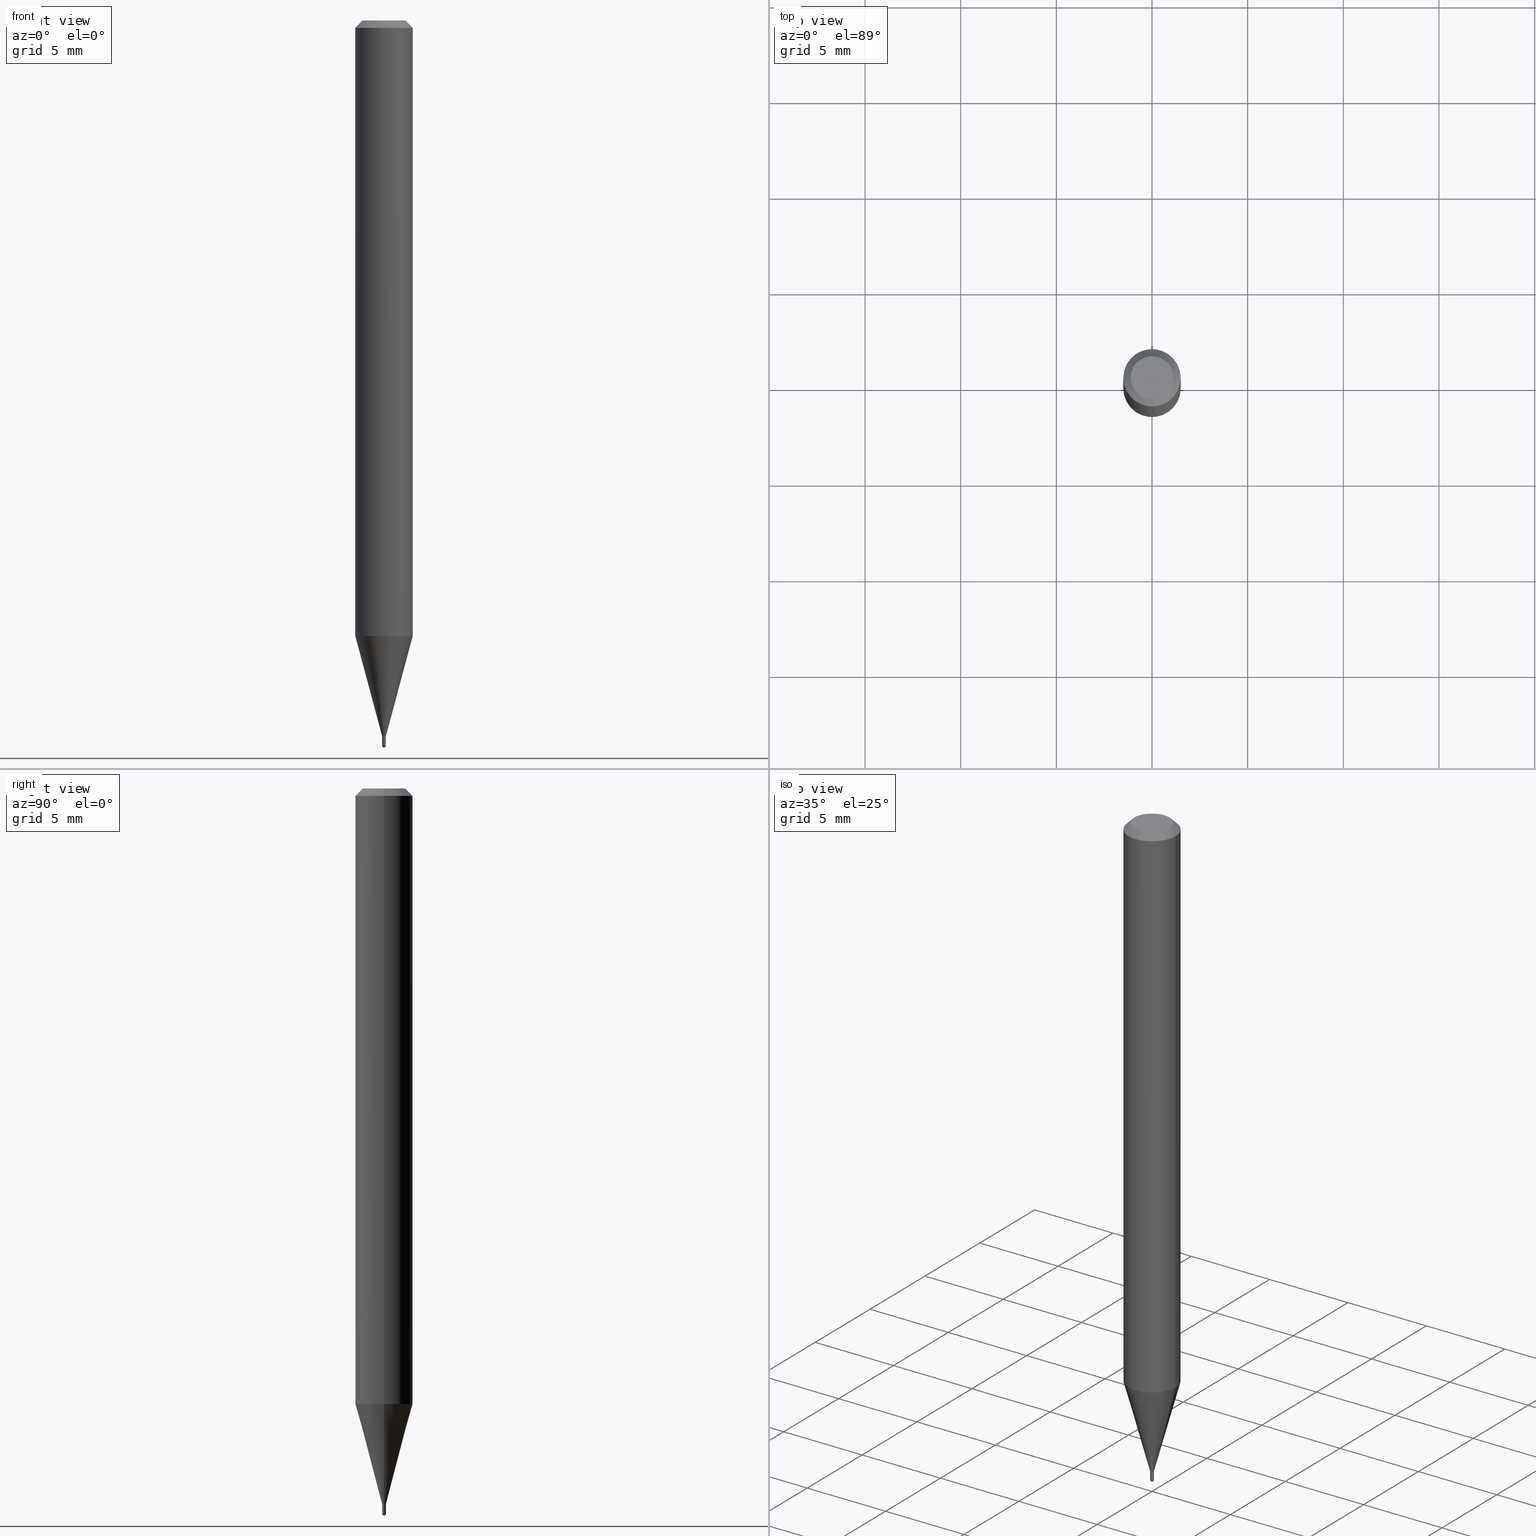
[diagram: canonical four-view strip — front | top / right | iso, engineering-drawing reading convention]
A machine part, canonical four-view strip (front | top / right | iso — engineering-drawing reading convention). The complete STEP part file that produces these views, byte-faithful:
ISO-10303-21;
HEADER;
FILE_DESCRIPTION (( 'STEP AP203' ),
    '1' );
FILE_NAME ('05020.STEP',
    '2024-03-08T20:51:06',
    ( '' ),
    ( '' ),
    'SwSTEP 2.0',
    'SolidWorks 2023',
    '' );
FILE_SCHEMA (( 'CONFIG_CONTROL_DESIGN' ));
ENDSEC;

DATA;
#1 = ORIENTED_EDGE ( 'NONE', *, *, #29, .T. ) ;
#2 = COORDINATED_UNIVERSAL_TIME_OFFSET ( 5, 0, .BEHIND. ) ;
#3 = VECTOR ( 'NONE', #100, 39.37007874015748143 ) ;
#4 = VECTOR ( 'NONE', #139, 39.37007874015748143 ) ;
#5 = DATE_AND_TIME ( #76, #154 ) ;
#6 = SPHERICAL_SURFACE ( 'NONE', #296, 0.003950000000000052428 ) ;
#7 = EDGE_LOOP ( 'NONE', ( #99, #195 ) ) ;
#8 = EDGE_LOOP ( 'NONE', ( #96, #13, #194, #362 ) ) ;
#9 = DIRECTION ( 'NONE',  ( 1.000000000000000000, -6.982962677686373207E-15, 0.000000000000000000 ) ) ;
#10 = AXIS2_PLACEMENT_3D ( 'NONE', #233, #118, #186 ) ;
#11 = DIRECTION ( 'NONE',  ( -0.7071067811865656694, 7.493145998870420424E-15, 0.7071067811865294761 ) ) ;
#12 = VERTEX_POINT ( 'NONE', #60 ) ;
#13 = ORIENTED_EDGE ( 'NONE', *, *, #45, .T. ) ;
#14 = ADVANCED_FACE ( 'NONE', ( #262 ), #52, .T. ) ;
#15 = ORIENTED_EDGE ( 'NONE', *, *, #433, .T. ) ;
#16 = CLOSED_SHELL ( 'NONE', ( #402, #368, #340, #372, #266, #261, #14, #208, #315, #193, #215, #506 ) ) ;
#17 = DIRECTION ( 'NONE',  ( -2.445468806185136597E-29, 3.491481338843145583E-15, 1.000000000000000000 ) ) ;
#18 = DIRECTION ( 'NONE',  ( 1.000000000000000000, -6.982962677686388195E-15, 0.000000000000000000 ) ) ;
#19 = EDGE_LOOP ( 'NONE', ( #171, #94, #298, #438, #15 ) ) ;
#20 = CARTESIAN_POINT ( 'NONE',  ( 3.098076394908904962E-29, -4.423232016608266035E-15, -1.266864000502962107 ) ) ;
#21 = EDGE_CURVE ( 'NONE', #462, #116, #301, .T. ) ;
#22 = AXIS2_PLACEMENT_3D ( 'NONE', #260, #511, #73 ) ;
#23 = CONICAL_SURFACE ( 'NONE', #367, 0.003950000000000198144, 0.2617993877991574569 ) ;
#24 = ORIENTED_EDGE ( 'NONE', *, *, #433, .F. ) ;
#25 = EDGE_LOOP ( 'NONE', ( #55, #370 ) ) ;
#26 = VERTEX_POINT ( 'NONE', #143 ) ;
#27 = CARTESIAN_POINT ( 'NONE',  ( 1.968655146103496235E-45, -2.810717800960375713E-31, -8.050215734195126909E-17 ) ) ;
#28 = CARTESIAN_POINT ( 'NONE',  ( 0.05904999999999999832, -4.123439461173740327E-16, 2.879382386107500220E-30 ) ) ;
#29 = EDGE_CURVE ( 'NONE', #59, #26, #282, .T. ) ;
#30 = DATE_AND_TIME ( #476, #482 ) ;
#31 = LINE ( 'NONE', #189, #242 ) ;
#32 = AXIS2_PLACEMENT_3D ( 'NONE', #46, #204, #178 ) ;
#33 = COORDINATED_UNIVERSAL_TIME_OFFSET ( 5, 0, .BEHIND. ) ;
#34 = DIRECTION ( 'NONE',  ( 1.000000000000000000, -6.982962677686267499E-15, 4.876176775795935793E-29 ) ) ;
#35 = PERSON_AND_ORGANIZATION ( #90, #422 ) ;
#36 = CARTESIAN_POINT ( 'NONE',  ( 0.000000000000000000, 0.000000000000000000, 0.000000000000000000 ) ) ;
#37 = ADVANCED_FACE ( 'NONE', ( #80 ), #6, .T. ) ;
#38 = DIRECTION ( 'NONE',  ( -0.7071067811865475727, 2.468850131082257455E-15, -0.7071067811865474617 ) ) ;
#39 = FACE_OUTER_BOUND ( 'NONE', #7, .T. ) ;
#40 = CARTESIAN_POINT ( 'NONE',  ( 3.648668488464925560E-29, -5.210297615240462075E-15, -1.492149999999999865 ) ) ;
#41 = PERSON_AND_ORGANIZATION_ROLE ( 'design_owner' ) ;
#42 = CIRCLE ( 'NONE', #265, 0.003950000000000000386 ) ;
#43 = DIRECTION ( 'NONE',  ( -2.445468806185136597E-29, 3.491481338843145583E-15, 1.000000000000000000 ) ) ;
#44 = DIRECTION ( 'NONE',  ( -6.982962677686265922E-15, -1.000000000000000000, 0.000000000000000000 ) ) ;
#45 = EDGE_CURVE ( 'NONE', #410, #12, #228, .T. ) ;
#46 = CARTESIAN_POINT ( 'NONE',  ( 3.649006279149151611E-29, -5.209813879754798599E-15, -1.492149999999999865 ) ) ;
#47 = DIRECTION ( 'NONE',  ( 1.000000000000000000, -6.982962677686265922E-15, 4.888540261209747396E-29 ) ) ;
#48 = VERTEX_POINT ( 'NONE', #167 ) ;
#49 = PLANE ( 'NONE',  #377 ) ;
#50 = CC_DESIGN_APPROVAL ( #133, ( #364 ) ) ;
#51 = DIRECTION ( 'NONE',  ( 0.2588190451025285110, 1.565188264969565170E-15, 0.9659258262890662028 ) ) ;
#52 = CYLINDRICAL_SURFACE ( 'NONE', #207, 0.05904999999999999832 ) ;
#53 =( LENGTH_UNIT ( ) NAMED_UNIT ( * ) SI_UNIT ( $, .METRE. ) );
#54 = DIRECTION ( 'NONE',  ( 1.000000000000000000, -6.982962677686246200E-15, 0.000000000000000000 ) ) ;
#55 = ORIENTED_EDGE ( 'NONE', *, *, #69, .F. ) ;
#56 = DIRECTION ( 'NONE',  ( 1.000000000000000000, -6.982962677686266711E-15, 4.876176775795936353E-29 ) ) ;
#57 = AXIS2_PLACEMENT_3D ( 'NONE', #85, #255, #399 ) ;
#58 = AXIS2_PLACEMENT_3D ( 'NONE', #239, #388, #34 ) ;
#59 = VERTEX_POINT ( 'NONE', #329 ) ;
#60 = CARTESIAN_POINT ( 'NONE',  ( -2.758270257682444562E-17, -0.003950000000005235781, -1.492149999999999865 ) ) ;
#61 = CARTESIAN_POINT ( 'NONE',  ( -0.05904999999999999832, 4.195754854663391478E-16, -2.904631170795521892E-30 ) ) ;
#62 = EDGE_CURVE ( 'NONE', #246, #483, #160, .T. ) ;
#63 = ORIENTED_EDGE ( 'NONE', *, *, #237, .T. ) ;
#64 = CARTESIAN_POINT ( 'NONE',  ( -0.003450000000000000809, -5.114043319888696423E-15, -1.472500000000000142 ) ) ;
#65 = ORIENTED_EDGE ( 'NONE', *, *, #295, .F. ) ;
#66 = VECTOR ( 'NONE', #339, 39.37007874015748143 ) ;
#67 = COORDINATED_UNIVERSAL_TIME_OFFSET ( 5, 0, .BEHIND. ) ;
#68 = VECTOR ( 'NONE', #319, 39.37007874015748143 ) ;
#69 = EDGE_CURVE ( 'NONE', #264, #165, #316, .T. ) ;
#70 = DIRECTION ( 'NONE',  ( 1.000000000000000000, -6.982962677686373207E-15, 0.000000000000000000 ) ) ;
#71 = PERSON_AND_ORGANIZATION_ROLE ( 'design_supplier' ) ;
#72 = DIRECTION ( 'NONE',  ( 1.000000000000000000, -6.982962677686266711E-15, 4.876176775795936353E-29 ) ) ;
#73 = DIRECTION ( 'NONE',  ( 1.000000000000000000, -6.982962677686246200E-15, 0.000000000000000000 ) ) ;
#74 = EDGE_LOOP ( 'NONE', ( #227, #409, #447, #452 ) ) ;
#75 = PLANE ( 'NONE',  #371 ) ;
#76 = CALENDAR_DATE ( 2024, 8, 3 ) ;
#77 = ORIENTED_EDGE ( 'NONE', *, *, #346, .F. ) ;
#78 = CC_DESIGN_PERSON_AND_ORGANIZATION_ASSIGNMENT ( #387, #394, ( #289 ) ) ;
#79 = DIRECTION ( 'NONE',  ( -2.445468806185136877E-29, 3.491481338843145188E-15, 1.000000000000000000 ) ) ;
#80 = FACE_OUTER_BOUND ( 'NONE', #491, .T. ) ;
#81 = CARTESIAN_POINT ( 'NONE',  ( 3.668203209277724356E-31, -5.237222008264746748E-17, -0.01500000000000008098 ) ) ;
#82 = VECTOR ( 'NONE', #435, 39.37007874015748143 ) ;
#83 = ORIENTED_EDGE ( 'NONE', *, *, #102, .F. ) ;
#84 = DIRECTION ( 'NONE',  ( -1.000000000000000000, 6.982962677686266711E-15, 0.000000000000000000 ) ) ;
#85 = CARTESIAN_POINT ( 'NONE',  ( 3.599730082704520905E-29, -5.139460530777110821E-15, -1.471999999999999975 ) ) ;
#86 = DIRECTION ( 'NONE',  ( -2.445468806185136597E-29, 3.491481338843145583E-15, 1.000000000000000000 ) ) ;
#87 = CYLINDRICAL_SURFACE ( 'NONE', #58, 0.003950000000000000386 ) ;
#88 = CARTESIAN_POINT ( 'NONE',  ( -0.003950000000000198144, 2.806643806252536524E-17, -1.942979360650785271E-31 ) ) ;
#89 = LINE ( 'NONE', #163, #4 ) ;
#90 = PERSON ( 'UNSPECIFIED', 'UNSPECIFIED', 'UNSPECIFIED', ('UNSPECIFIED'), ('UNSPECIFIED'), ('UNSPECIFIED') ) ;
#91 = CIRCLE ( 'NONE', #342, 0.05904999999999999832 ) ;
#92 = CARTESIAN_POINT ( 'NONE',  ( -0.003950000000000000386, 2.806643806252396008E-17, -1.942979360650688056E-31 ) ) ;
#93 = LOCAL_TIME ( 15, 51, 6.000000000000000000, #2 ) ;
#94 = ORIENTED_EDGE ( 'NONE', *, *, #130, .T. ) ;
#95 = DIRECTION ( 'NONE',  ( 1.000000000000000000, -6.982962677686265922E-15, 4.876176775795935793E-29 ) ) ;
#96 = ORIENTED_EDGE ( 'NONE', *, *, #427, .F. ) ;
#97 = ORIENTED_EDGE ( 'NONE', *, *, #142, .T. ) ;
#98 = FACE_OUTER_BOUND ( 'NONE', #231, .T. ) ;
#99 = ORIENTED_EDGE ( 'NONE', *, *, #359, .T. ) ;
#100 = DIRECTION ( 'NONE',  ( 0.7071067811865475727, -7.319954787623256045E-15, -0.7071067811865474617 ) ) ;
#101 = VECTOR ( 'NONE', #496, 39.37007874015748143 ) ;
#102 = EDGE_CURVE ( 'NONE', #401, #424, #505, .T. ) ;
#103 = AXIS2_PLACEMENT_3D ( 'NONE', #444, #86, #257 ) ;
#104 = APPROVAL_PERSON_ORGANIZATION ( #376, #133, #198 ) ;
#105 =( CONVERSION_BASED_UNIT ( 'INCH', #251 ) LENGTH_UNIT ( ) NAMED_UNIT ( #488 ) );
#106 = CARTESIAN_POINT ( 'NONE',  ( -0.003950000000000000386, -5.147443637538141834E-15, -1.472499999999999920 ) ) ;
#107 = ORIENTED_EDGE ( 'NONE', *, *, #224, .T. ) ;
#108 = CARTESIAN_POINT ( 'NONE',  ( 2.758270257689676197E-17, 0.003949999999994858665, -1.472499999999999920 ) ) ;
#109 = DIRECTION ( 'NONE',  ( -2.445468806185136597E-29, 3.491481338843145583E-15, 1.000000000000000000 ) ) ;
#110 = EDGE_CURVE ( 'NONE', #294, #12, #479, .T. ) ;
#111 = DIRECTION ( 'NONE',  ( 1.000000000000000000, -6.982962677686273021E-15, 0.000000000000000000 ) ) ;
#112 = FACE_OUTER_BOUND ( 'NONE', #169, .T. ) ;
#113 = VECTOR ( 'NONE', #11, 39.37007874015748143 ) ;
#114 = CYLINDRICAL_SURFACE ( 'NONE', #492, 0.003950000000000198144 ) ;
#115 = DIRECTION ( 'NONE',  ( 1.000000000000000000, -6.982962677686265922E-15, 4.883557194083112901E-29 ) ) ;
#116 = VERTEX_POINT ( 'NONE', #216 ) ;
#117 = APPROVAL ( #428, 'UNSPECIFIED' ) ;
#118 = DIRECTION ( 'NONE',  ( 2.445468806185136597E-29, -3.491481338843145583E-15, -1.000000000000000000 ) ) ;
#119 = CARTESIAN_POINT ( 'NONE',  ( -0.003950000000000198144, -5.111394092714584433E-15, -1.471999999999999975 ) ) ;
#120 = ORIENTED_EDGE ( 'NONE', *, *, #392, .T. ) ;
#121 = CARTESIAN_POINT ( 'NONE',  ( 3.668203209277724356E-31, -5.237222008264746748E-17, -0.01500000000000008098 ) ) ;
#122 = CARTESIAN_POINT ( 'NONE',  ( 0.000000000000000000, 0.000000000000000000, 0.000000000000000000 ) ) ;
#123 = DIRECTION ( 'NONE',  ( 1.000000000000000000, -6.982962677686267499E-15, 4.876176775795935793E-29 ) ) ;
#124 = AXIS2_PLACEMENT_3D ( 'NONE', #20, #177, #457 ) ;
#125 = CC_DESIGN_PERSON_AND_ORGANIZATION_ASSIGNMENT ( #35, #190, ( #197 ) ) ;
#126 = CIRCLE ( 'NONE', #181, 0.05904999999999999832 ) ;
#127 = SPHERICAL_SURFACE ( 'NONE', #439, 0.003950000000000052428 ) ;
#128 = COORDINATED_UNIVERSAL_TIME_OFFSET ( 5, 0, .BEHIND. ) ;
#129 = LINE ( 'NONE', #88, #82 ) ;
#130 = EDGE_CURVE ( 'NONE', #294, #408, #415, .T. ) ;
#131 = AXIS2_PLACEMENT_3D ( 'NONE', #250, #305, #397 ) ;
#132 = VECTOR ( 'NONE', #38, 39.37007874015748143 ) ;
#133 = APPROVAL ( #475, 'UNSPECIFIED' ) ;
#134 = DIRECTION ( 'NONE',  ( -2.445468806185136597E-29, 3.491481338843145583E-15, 1.000000000000000000 ) ) ;
#135 = UNCERTAINTY_MEASURE_WITH_UNIT (LENGTH_MEASURE( 1.000000000000000082E-05 ), #105, 'distance_accuracy_value', 'NONE');
#136 = LINE ( 'NONE', #443, #259 ) ;
#137 = EDGE_CURVE ( 'NONE', #26, #48, #168, .T. ) ;
#138 = DIRECTION ( 'NONE',  ( 1.000000000000000000, -6.982962677686246200E-15, 0.000000000000000000 ) ) ;
#139 = DIRECTION ( 'NONE',  ( -0.2588190451025285110, 5.211531920934594429E-15, 0.9659258262890662028 ) ) ;
#140 = ORIENTED_EDGE ( 'NONE', *, *, #173, .T. ) ;
#141 = EDGE_LOOP ( 'NONE', ( #382, #140, #502, #338 ) ) ;
#142 = EDGE_CURVE ( 'NONE', #116, #48, #180, .T. ) ;
#143 = CARTESIAN_POINT ( 'NONE',  ( -0.05904999999999999832, -4.003656531141925753E-15, -1.266864000502962107 ) ) ;
#144 = AXIS2_PLACEMENT_3D ( 'NONE', #306, #494, #18 ) ;
#145 = EDGE_CURVE ( 'NONE', #477, #294, #258, .T. ) ;
#146 = ORIENTED_EDGE ( 'NONE', *, *, #272, .F. ) ;
#147 = CARTESIAN_POINT ( 'NONE',  ( 3.600952817107613706E-29, -5.141206271446532325E-15, -1.472500000000000142 ) ) ;
#148 = AXIS2_PLACEMENT_3D ( 'NONE', #417, #469, #383 ) ;
#149 = DIRECTION ( 'NONE',  ( 7.105427357601000281E-15, 1.000000000000000000, 0.000000000000000000 ) ) ;
#150 = ORIENTED_EDGE ( 'NONE', *, *, #378, .F. ) ;
#151 = COORDINATED_UNIVERSAL_TIME_OFFSET ( 5, 0, .BEHIND. ) ;
#152 = DIRECTION ( 'NONE',  ( 1.000000000000000000, -6.982962677686265922E-15, 4.883557194083112901E-29 ) ) ;
#153 = CIRCLE ( 'NONE', #455, 0.003450000000000000809 ) ;
#154 = LOCAL_TIME ( 15, 51, 6.000000000000000000, #33 ) ;
#155 = EDGE_CURVE ( 'NONE', #48, #116, #126, .T. ) ;
#156 = DATE_TIME_ROLE ( 'classification_date' ) ;
#157 = DIRECTION ( 'NONE',  ( -2.445468806185136597E-29, 3.491481338843145583E-15, 1.000000000000000000 ) ) ;
#158 = EDGE_LOOP ( 'NONE', ( #1, #223, #176, #150 ) ) ;
#159 =( NAMED_UNIT ( * ) PLANE_ANGLE_UNIT ( ) SI_UNIT ( $, .RADIAN. ) );
#160 = LINE ( 'NONE', #323, #405 ) ;
#161 = ORIENTED_EDGE ( 'NONE', *, *, #21, .F. ) ;
#162 = ADVANCED_BREP_SHAPE_REPRESENTATION ( '05020', ( #470, #307, #326 ), #219 ) ;
#163 = CARTESIAN_POINT ( 'NONE',  ( -0.003950000000000198144, -5.113139833384005937E-15, -1.472499999999999920 ) ) ;
#164 = AXIS2_PLACEMENT_3D ( 'NONE', #504, #386, #310 ) ;
#165 = VERTEX_POINT ( 'NONE', #64 ) ;
#166 = VERTEX_POINT ( 'NONE', #312 ) ;
#167 = CARTESIAN_POINT ( 'NONE',  ( -0.05904999999999999832, -1.818226632879117656E-15, -0.01500000000000008098 ) ) ;
#168 = LINE ( 'NONE', #61, #101 ) ;
#169 = EDGE_LOOP ( 'NONE', ( #299, #330, #83, #421 ) ) ;
#170 = DATE_TIME_ROLE ( 'creation_date' ) ;
#171 = ORIENTED_EDGE ( 'NONE', *, *, #145, .T. ) ;
#172 = CARTESIAN_POINT ( 'NONE',  ( 0.000000000000000000, 0.000000000000000000, 0.000000000000000000 ) ) ;
#173 = EDGE_CURVE ( 'NONE', #26, #59, #91, .T. ) ;
#174 = CYLINDRICAL_SURFACE ( 'NONE', #474, 0.003950000000000198144 ) ;
#175 = DIRECTION ( 'NONE',  ( -2.445468806185136597E-29, 3.491481338843145583E-15, 1.000000000000000000 ) ) ;
#176 = ORIENTED_EDGE ( 'NONE', *, *, #142, .F. ) ;
#177 = DIRECTION ( 'NONE',  ( -2.445468806185136597E-29, 3.491481338843145583E-15, 1.000000000000000000 ) ) ;
#178 = DIRECTION ( 'NONE',  ( 1.000000000000000000, -6.982962677686246200E-15, 0.000000000000000000 ) ) ;
#179 = EDGE_CURVE ( 'NONE', #424, #401, #481, .T. ) ;
#180 = CIRCLE ( 'NONE', #471, 0.05904999999999999832 ) ;
#181 = AXIS2_PLACEMENT_3D ( 'NONE', #121, #109, #460 ) ;
#182 = FACE_OUTER_BOUND ( 'NONE', #241, .T. ) ;
#183 = CC_DESIGN_DATE_AND_TIME_ASSIGNMENT ( #235, #156, ( #197 ) ) ;
#184 = FACE_OUTER_BOUND ( 'NONE', #200, .T. ) ;
#185 = ORIENTED_EDGE ( 'NONE', *, *, #110, .T. ) ;
#186 = DIRECTION ( 'NONE',  ( -1.000000000000000000, 6.982962677686266711E-15, 0.000000000000000000 ) ) ;
#187 = DIRECTION ( 'NONE',  ( -2.445468806185136597E-29, 3.491481338843145583E-15, 1.000000000000000000 ) ) ;
#188 = DIRECTION ( 'NONE',  ( -2.445468806185136597E-29, 3.491481338843145583E-15, 1.000000000000000000 ) ) ;
#189 = CARTESIAN_POINT ( 'NONE',  ( 0.003450000000000000809, -5.165297492684549863E-15, -1.472500000000000142 ) ) ;
#190 = PERSON_AND_ORGANIZATION_ROLE ( 'classification_officer' ) ;
#191 = EDGE_CURVE ( 'NONE', #462, #166, #309, .T. ) ;
#192 = CARTESIAN_POINT ( 'NONE',  ( 2.806643806256062979E-17, 0.003949999999994816165, -1.492149999999999865 ) ) ;
#193 = ADVANCED_FACE ( 'NONE', ( #465 ), #75, .F. ) ;
#194 = ORIENTED_EDGE ( 'NONE', *, *, #110, .F. ) ;
#195 = ORIENTED_EDGE ( 'NONE', *, *, #272, .T. ) ;
#196 = CIRCLE ( 'NONE', #270, 0.003950000000000052428 ) ;
#197 = SECURITY_CLASSIFICATION ( '', '', #284 ) ;
#198 = APPROVAL_ROLE ( '' ) ;
#199 = FACE_OUTER_BOUND ( 'NONE', #158, .T. ) ;
#200 = EDGE_LOOP ( 'NONE', ( #331, #107, #248, #256 ) ) ;
#201 = DIRECTION ( 'NONE',  ( -1.000000000000000000, 6.982962677686265922E-15, -4.883557194083112340E-29 ) ) ;
#202 = DIRECTION ( 'NONE',  ( 1.000000000000000000, -6.982962677686266711E-15, 4.876176775795936353E-29 ) ) ;
#203 = CARTESIAN_POINT ( 'NONE',  ( 0.003950000000000000386, -5.203092778177526401E-15, -1.492149999999999865 ) ) ;
#204 = DIRECTION ( 'NONE',  ( -2.445468806185136597E-29, 3.491481338843145583E-15, 1.000000000000000000 ) ) ;
#205 = CARTESIAN_POINT ( 'NONE',  ( -0.003950000000000000386, -5.147443637538141834E-15, -1.492149999999999865 ) ) ;
#206 = ORIENTED_EDGE ( 'NONE', *, *, #346, .T. ) ;
#207 = AXIS2_PLACEMENT_3D ( 'NONE', #172, #214, #56 ) ;
#208 = ADVANCED_FACE ( 'NONE', ( #484 ), #334, .T. ) ;
#209 = CONICAL_SURFACE ( 'NONE', #448, 0.003450000000000000809, 0.7853981633974739252 ) ;
#210 = CC_DESIGN_PERSON_AND_ORGANIZATION_ASSIGNMENT ( #271, #71, ( #289 ) ) ;
#211 = DIRECTION ( 'NONE',  ( 2.438088387897960049E-29, -3.491481338843145188E-15, -1.000000000000000000 ) ) ;
#212 = CARTESIAN_POINT ( 'NONE',  ( 3.600952817107613706E-29, -5.141206271446532325E-15, -1.472500000000000142 ) ) ;
#213 = ORIENTED_EDGE ( 'NONE', *, *, #191, .F. ) ;
#214 = DIRECTION ( 'NONE',  ( -2.445468806185136597E-29, 3.491481338843145583E-15, 1.000000000000000000 ) ) ;
#215 = ADVANCED_FACE ( 'NONE', ( #287 ), #407, .T. ) ;
#216 = CARTESIAN_POINT ( 'NONE',  ( 0.05904999999999999832, -4.647161662000215063E-16, -0.01500000000000008098 ) ) ;
#217 = AXIS2_PLACEMENT_3D ( 'NONE', #108, #314, #416 ) ;
#218 = CIRCLE ( 'NONE', #419, 0.003950000000000000386 ) ;
#219 =( GEOMETRIC_REPRESENTATION_CONTEXT ( 3 ) GLOBAL_UNCERTAINTY_ASSIGNED_CONTEXT ( ( #135 ) ) GLOBAL_UNIT_ASSIGNED_CONTEXT ( ( #105, #159, #263 ) ) REPRESENTATION_CONTEXT ( 'NONE', 'WORKASPACE' ) );
#220 = CARTESIAN_POINT ( 'NONE',  ( 0.000000000000000000, 0.000000000000000000, 0.000000000000000000 ) ) ;
#221 = APPLICATION_CONTEXT ( 'configuration controlled 3d designs of mechanical parts and assemblies' ) ;
#222 = FACE_OUTER_BOUND ( 'NONE', #489, .T. ) ;
#223 = ORIENTED_EDGE ( 'NONE', *, *, #137, .T. ) ;
#224 = EDGE_CURVE ( 'NONE', #501, #424, #129, .T. ) ;
#225 = VERTEX_POINT ( 'NONE', #254 ) ;
#226 = DIRECTION ( 'NONE',  ( 1.000000000000000000, -6.982962677686388195E-15, 0.000000000000000000 ) ) ;
#227 = ORIENTED_EDGE ( 'NONE', *, *, #303, .F. ) ;
#228 = CIRCLE ( 'NONE', #308, 0.003950000000000052428 ) ;
#229 = CONICAL_SURFACE ( 'NONE', #10, 0.05904999999999999832, 0.7853981633974483900 ) ;
#230 = CARTESIAN_POINT ( 'NONE',  ( 0.003950000000000198144, -5.167043233353972156E-15, -1.471999999999999975 ) ) ;
#231 = EDGE_LOOP ( 'NONE', ( #495, #426, #297, #374 ) ) ;
#232 = DATE_AND_TIME ( #450, #391 ) ;
#233 = CARTESIAN_POINT ( 'NONE',  ( 3.668203209277724356E-31, -5.237222008264746748E-17, -0.01500000000000008098 ) ) ;
#234 = DIRECTION ( 'NONE',  ( 1.000000000000000000, -6.982962677686266711E-15, 4.876176775795936353E-29 ) ) ;
#235 = DATE_AND_TIME ( #512, #93 ) ;
#236 = DIRECTION ( 'NONE',  ( -6.982962677686265922E-15, -1.000000000000000000, 0.000000000000000000 ) ) ;
#237 = EDGE_CURVE ( 'NONE', #225, #59, #136, .T. ) ;
#238 = APPROVAL_STATUS ( 'not_yet_approved' ) ;
#239 = CARTESIAN_POINT ( 'NONE',  ( 0.000000000000000000, 0.000000000000000000, 0.000000000000000000 ) ) ;
#240 = APPROVAL ( #238, 'UNSPECIFIED' ) ;
#241 = EDGE_LOOP ( 'NONE', ( #120, #206, #273, #468 ) ) ;
#242 = VECTOR ( 'NONE', #456, 39.37007874015748143 ) ;
#243 = CARTESIAN_POINT ( 'NONE',  ( 3.600952817107613706E-29, -5.141206271446532325E-15, -1.472500000000000142 ) ) ;
#244 = APPROVAL_PERSON_ORGANIZATION ( #385, #117, #318 ) ;
#245 = SHAPE_DEFINITION_REPRESENTATION ( #360, #162 ) ;
#246 = VERTEX_POINT ( 'NONE', #203 ) ;
#247 = PERSON_AND_ORGANIZATION ( #90, #422 ) ;
#248 = ORIENTED_EDGE ( 'NONE', *, *, #179, .T. ) ;
#249 = APPROVAL_PERSON_ORGANIZATION ( #278, #240, #423 ) ;
#250 = CARTESIAN_POINT ( 'NONE',  ( 3.600952817107613145E-29, -5.141206271446531536E-15, -1.472499999999999920 ) ) ;
#251 = LENGTH_MEASURE_WITH_UNIT ( LENGTH_MEASURE( 0.02539999999999999897 ), #53 );
#252 = ORIENTED_EDGE ( 'NONE', *, *, #290, .T. ) ;
#253 = ORIENTED_EDGE ( 'NONE', *, *, #467, .F. ) ;
#254 = CARTESIAN_POINT ( 'NONE',  ( 0.003950000000000198144, -5.168788974023393659E-15, -1.472499999999999920 ) ) ;
#255 = DIRECTION ( 'NONE',  ( -2.445468806185136597E-29, 3.491481338843145583E-15, 1.000000000000000000 ) ) ;
#256 = ORIENTED_EDGE ( 'NONE', *, *, #485, .F. ) ;
#257 = DIRECTION ( 'NONE',  ( 1.000000000000000000, -6.982962677686388195E-15, 0.000000000000000000 ) ) ;
#258 = CIRCLE ( 'NONE', #22, 0.003950000000000000386 ) ;
#259 = VECTOR ( 'NONE', #51, 39.37007874015748143 ) ;
#260 = CARTESIAN_POINT ( 'NONE',  ( 3.649006279149151611E-29, -5.209813879754798599E-15, -1.492149999999999865 ) ) ;
#261 = ADVANCED_FACE ( 'NONE', ( #363 ), #23, .T. ) ;
#262 = FACE_OUTER_BOUND ( 'NONE', #141, .T. ) ;
#263 =( NAMED_UNIT ( * ) SI_UNIT ( $, .STERADIAN. ) SOLID_ANGLE_UNIT ( ) );
#264 = VERTEX_POINT ( 'NONE', #268 ) ;
#265 = AXIS2_PLACEMENT_3D ( 'NONE', #311, #509, #54 ) ;
#266 = ADVANCED_FACE ( 'NONE', ( #182 ), #317, .T. ) ;
#267 = DIRECTION ( 'NONE',  ( -2.445468806185136597E-29, 3.491481338843145583E-15, 1.000000000000000000 ) ) ;
#268 = CARTESIAN_POINT ( 'NONE',  ( 0.003450000000000000809, -5.165297492684549863E-15, -1.472500000000000142 ) ) ;
#269 = DIRECTION ( 'NONE',  ( -2.438088387897960049E-29, 3.491481338843145188E-15, 1.000000000000000000 ) ) ;
#270 = AXIS2_PLACEMENT_3D ( 'NONE', #425, #274, #149 ) ;
#271 = PERSON_AND_ORGANIZATION ( #90, #422 ) ;
#272 = EDGE_CURVE ( 'NONE', #408, #483, #389, .T. ) ;
#273 = ORIENTED_EDGE ( 'NONE', *, *, #29, .F. ) ;
#274 = DIRECTION ( 'NONE',  ( 1.000000000000000000, -7.105427357601001070E-15, 4.926315508542082329E-29 ) ) ;
#275 = DIRECTION ( 'NONE',  ( 1.000000000000000000, -6.982962677686265922E-15, 4.888540261209747396E-29 ) ) ;
#276 = PERSON_AND_ORGANIZATION_ROLE ( 'creator' ) ;
#277 = APPLICATION_CONTEXT ( 'configuration controlled 3d designs of mechanical parts and assemblies' ) ;
#278 = PERSON_AND_ORGANIZATION ( #90, #422 ) ;
#279 = APPLICATION_PROTOCOL_DEFINITION ( 'international standard', 'config_control_design', 1994, #277 ) ;
#280 = CARTESIAN_POINT ( 'NONE',  ( 0.04404999999999999888, -3.798447818264463530E-16, -8.050215734194887786E-17 ) ) ;
#281 = APPLICATION_PROTOCOL_DEFINITION ( 'international standard', 'config_control_design', 1994, #221 ) ;
#282 = CIRCLE ( 'NONE', #124, 0.05904999999999999832 ) ;
#283 = AXIS2_PLACEMENT_3D ( 'NONE', #478, #188, #234 ) ;
#284 = SECURITY_CLASSIFICATION_LEVEL ( 'unclassified' ) ;
#285 = CARTESIAN_POINT ( 'NONE',  ( 3.649006279149151611E-29, -5.209813879754798599E-15, -1.492149999999999865 ) ) ;
#286 = ORIENTED_EDGE ( 'NONE', *, *, #295, .T. ) ;
#287 = FACE_OUTER_BOUND ( 'NONE', #74, .T. ) ;
#288 = CC_DESIGN_APPROVAL ( #117, ( #197 ) ) ;
#289 = PRODUCT_DEFINITION_FORMATION_WITH_SPECIFIED_SOURCE ( 'ANY', '', #486, .NOT_KNOWN. ) ;
#290 = EDGE_CURVE ( 'NONE', #166, #462, #507, .T. ) ;
#291 = CARTESIAN_POINT ( 'NONE',  ( -0.003450000000000000809, -5.116692547062808413E-15, -1.472500000000000142 ) ) ;
#292 = ORIENTED_EDGE ( 'NONE', *, *, #155, .T. ) ;
#293 = DIRECTION ( 'NONE',  ( 2.445468806185136597E-29, -3.491481338843145583E-15, -1.000000000000000000 ) ) ;
#294 = VERTEX_POINT ( 'NONE', #205 ) ;
#295 = EDGE_CURVE ( 'NONE', #12, #246, #218, .T. ) ;
#296 = AXIS2_PLACEMENT_3D ( 'NONE', #355, #152, #44 ) ;
#297 = ORIENTED_EDGE ( 'NONE', *, *, #485, .T. ) ;
#298 = ORIENTED_EDGE ( 'NONE', *, *, #359, .F. ) ;
#299 = ORIENTED_EDGE ( 'NONE', *, *, #69, .T. ) ;
#300 = CC_DESIGN_DATE_AND_TIME_ASSIGNMENT ( #487, #170, ( #364 ) ) ;
#301 = LINE ( 'NONE', #454, #3 ) ;
#302 = CARTESIAN_POINT ( 'NONE',  ( 3.075995059520799729E-16, 0.04404999999999999888, -1.940508316470162065E-16 ) ) ;
#303 = EDGE_CURVE ( 'NONE', #165, #424, #404, .T. ) ;
#304 = FACE_OUTER_BOUND ( 'NONE', #480, .T. ) ;
#305 = DIRECTION ( 'NONE',  ( -2.445468806185136597E-29, 3.491481338843145583E-15, 1.000000000000000000 ) ) ;
#306 = CARTESIAN_POINT ( 'NONE',  ( 3.600952817107613145E-29, -5.141206271446531536E-15, -1.472499999999999920 ) ) ;
#307 = MANIFOLD_SOLID_BREP ( 'Body-Move/Copy2[2]', #16 ) ;
#308 = AXIS2_PLACEMENT_3D ( 'NONE', #40, #201, #361 ) ;
#309 = CIRCLE ( 'NONE', #461, 0.04404999999999999888 ) ;
#310 = DIRECTION ( 'NONE',  ( 1.000000000000000000, -6.982962677686388195E-15, 0.000000000000000000 ) ) ;
#311 = CARTESIAN_POINT ( 'NONE',  ( 3.649006279149151611E-29, -5.209813879754798599E-15, -1.492149999999999865 ) ) ;
#312 = CARTESIAN_POINT ( 'NONE',  ( -0.04404999999999999888, 3.337856159934031674E-16, -8.050215734195352474E-17 ) ) ;
#313 = EDGE_CURVE ( 'NONE', #501, #225, #349, .T. ) ;
#314 = DIRECTION ( 'NONE',  ( 2.438088387897960049E-29, -3.491481338843145188E-15, -1.000000000000000000 ) ) ;
#315 = ADVANCED_FACE ( 'NONE', ( #222 ), #49, .F. ) ;
#316 = CIRCLE ( 'NONE', #333, 0.003450000000000000809 ) ;
#317 = CONICAL_SURFACE ( 'NONE', #144, 0.003950000000000198144, 0.2617993877991574569 ) ;
#318 = APPROVAL_ROLE ( '' ) ;
#319 = DIRECTION ( 'NONE',  ( -2.445468806185136877E-29, 3.491481338843145188E-15, 1.000000000000000000 ) ) ;
#320 = ADVANCED_FACE ( 'NONE', ( #39 ), #500, .F. ) ;
#321 = CARTESIAN_POINT ( 'NONE',  ( 0.000000000000000000, 0.000000000000000000, 0.000000000000000000 ) ) ;
#322 = ORIENTED_EDGE ( 'NONE', *, *, #130, .F. ) ;
#323 = CARTESIAN_POINT ( 'NONE',  ( 0.003950000000000000386, -2.758270257686075787E-17, 1.926089826439394878E-31 ) ) ;
#324 = ORIENTED_EDGE ( 'NONE', *, *, #427, .T. ) ;
#325 = CIRCLE ( 'NONE', #164, 0.003950000000000198144 ) ;
#326 = AXIS2_PLACEMENT_3D ( 'NONE', #36, #344, #380 ) ;
#327 = CARTESIAN_POINT ( 'NONE',  ( 3.600952817107613145E-29, -5.141206271446531536E-15, -1.472499999999999920 ) ) ;
#328 = EDGE_CURVE ( 'NONE', #165, #264, #153, .T. ) ;
#329 = CARTESIAN_POINT ( 'NONE',  ( 0.05904999999999999832, -4.835575962725639377E-15, -1.266864000502962107 ) ) ;
#330 = ORIENTED_EDGE ( 'NONE', *, *, #303, .T. ) ;
#331 = ORIENTED_EDGE ( 'NONE', *, *, #313, .F. ) ;
#332 = DIRECTION ( 'NONE',  ( -2.445468806185136597E-29, 3.491481338843145583E-15, 1.000000000000000000 ) ) ;
#333 = AXIS2_PLACEMENT_3D ( 'NONE', #357, #134, #442 ) ;
#334 = CONICAL_SURFACE ( 'NONE', #473, 0.05904999999999999832, 0.7853981633974483900 ) ;
#335 = DESIGN_CONTEXT ( 'detailed design', #277, 'design' ) ;
#336 = FACE_OUTER_BOUND ( 'NONE', #19, .T. ) ;
#337 = PRODUCT_RELATED_PRODUCT_CATEGORY ( 'detail', '', ( #486 ) ) ;
#338 = ORIENTED_EDGE ( 'NONE', *, *, #155, .F. ) ;
#339 = DIRECTION ( 'NONE',  ( -2.445468806185136877E-29, 3.491481338843145188E-15, 1.000000000000000000 ) ) ;
#340 = ADVANCED_FACE ( 'NONE', ( #304 ), #229, .T. ) ;
#341 = CARTESIAN_POINT ( 'NONE',  ( 3.668203209277724356E-31, -5.237222008264746748E-17, -0.01500000000000008098 ) ) ;
#342 = AXIS2_PLACEMENT_3D ( 'NONE', #375, #267, #111 ) ;
#343 = DIRECTION ( 'NONE',  ( -2.445468806185136597E-29, 3.491481338843145583E-15, 1.000000000000000000 ) ) ;
#344 = DIRECTION ( 'NONE',  ( 0.000000000000000000, 0.000000000000000000, 1.000000000000000000 ) ) ;
#345 = CYLINDRICAL_SURFACE ( 'NONE', #283, 0.05904999999999999832 ) ;
#346 = EDGE_CURVE ( 'NONE', #501, #26, #89, .T. ) ;
#347 = ORIENTED_EDGE ( 'NONE', *, *, #313, .T. ) ;
#348 = DIRECTION ( 'NONE',  ( -2.445468806185136877E-29, 3.491481338843145188E-15, 1.000000000000000000 ) ) ;
#349 = CIRCLE ( 'NONE', #103, 0.003950000000000198144 ) ;
#350 = CC_DESIGN_SECURITY_CLASSIFICATION ( #197, ( #289 ) ) ;
#351 = CARTESIAN_POINT ( 'NONE',  ( 0.003950000000000000386, -5.168788974023392081E-15, -1.472499999999999920 ) ) ;
#352 = ADVANCED_FACE ( 'NONE', ( #445 ), #87, .T. ) ;
#353 = ORIENTED_EDGE ( 'NONE', *, *, #173, .F. ) ;
#354 = APPROVAL_DATE_TIME ( #30, #240 ) ;
#355 = CARTESIAN_POINT ( 'NONE',  ( 3.648668488464925560E-29, -5.210297615240462075E-15, -1.492149999999999865 ) ) ;
#356 = CYLINDRICAL_SURFACE ( 'NONE', #508, 0.003950000000000000386 ) ;
#357 = CARTESIAN_POINT ( 'NONE',  ( 3.600952817107613706E-29, -5.141206271446532325E-15, -1.472500000000000142 ) ) ;
#358 = AXIS2_PLACEMENT_3D ( 'NONE', #327, #343, #138 ) ;
#359 = EDGE_CURVE ( 'NONE', #483, #408, #499, .T. ) ;
#360 = PRODUCT_DEFINITION_SHAPE ( 'NONE', 'NONE',  #364 ) ;
#361 = DIRECTION ( 'NONE',  ( -6.982962677686265922E-15, -1.000000000000000000, 0.000000000000000000 ) ) ;
#362 = ORIENTED_EDGE ( 'NONE', *, *, #145, .F. ) ;
#363 = FACE_OUTER_BOUND ( 'NONE', #414, .T. ) ;
#364 = PRODUCT_DEFINITION ( 'UNKNOWN', '', #289, #335 ) ;
#365 = DIRECTION ( 'NONE',  ( 1.000000000000000000, -6.982962677686246200E-15, 0.000000000000000000 ) ) ;
#366 = ORIENTED_EDGE ( 'NONE', *, *, #62, .T. ) ;
#367 = AXIS2_PLACEMENT_3D ( 'NONE', #498, #17, #226 ) ;
#368 = ADVANCED_FACE ( 'NONE', ( #112 ), #209, .T. ) ;
#369 = CC_DESIGN_PERSON_AND_ORGANIZATION_ASSIGNMENT ( #503, #276, ( #364 ) ) ;
#370 = ORIENTED_EDGE ( 'NONE', *, *, #328, .F. ) ;
#371 = AXIS2_PLACEMENT_3D ( 'NONE', #243, #269, #95 ) ;
#372 = ADVANCED_FACE ( 'NONE', ( #199 ), #345, .T. ) ;
#373 = ORIENTED_EDGE ( 'NONE', *, *, #290, .F. ) ;
#374 = ORIENTED_EDGE ( 'NONE', *, *, #102, .T. ) ;
#375 = CARTESIAN_POINT ( 'NONE',  ( 3.098076394908904962E-29, -4.423232016608266035E-15, -1.266864000502962107 ) ) ;
#376 = PERSON_AND_ORGANIZATION ( #90, #422 ) ;
#377 = AXIS2_PLACEMENT_3D ( 'NONE', #302, #211, #390 ) ;
#378 = EDGE_CURVE ( 'NONE', #59, #116, #384, .T. ) ;
#379 = APPROVAL_DATE_TIME ( #232, #133 ) ;
#380 = DIRECTION ( 'NONE',  ( 1.000000000000000000, 0.000000000000000000, 0.000000000000000000 ) ) ;
#381 = CARTESIAN_POINT ( 'NONE',  ( 3.648668488464925560E-29, -5.210297615240462075E-15, -1.492149999999999865 ) ) ;
#382 = ORIENTED_EDGE ( 'NONE', *, *, #137, .F. ) ;
#383 = DIRECTION ( 'NONE',  ( 1.000000000000000000, -6.982962677686388195E-15, 0.000000000000000000 ) ) ;
#384 = LINE ( 'NONE', #28, #430 ) ;
#385 = PERSON_AND_ORGANIZATION ( #90, #422 ) ;
#386 = DIRECTION ( 'NONE',  ( -2.445468806185136597E-29, 3.491481338843145583E-15, 1.000000000000000000 ) ) ;
#387 = PERSON_AND_ORGANIZATION ( #90, #422 ) ;
#388 = DIRECTION ( 'NONE',  ( -2.445468806185136597E-29, 3.491481338843145583E-15, 1.000000000000000000 ) ) ;
#389 = CIRCLE ( 'NONE', #358, 0.003950000000000000386 ) ;
#390 = DIRECTION ( 'NONE',  ( -1.000000000000000000, 6.982962677686265922E-15, -4.876176775795935793E-29 ) ) ;
#391 = LOCAL_TIME ( 15, 51, 6.000000000000000000, #67 ) ;
#392 = EDGE_CURVE ( 'NONE', #225, #501, #325, .T. ) ;
#393 = CARTESIAN_POINT ( 'NONE',  ( -0.05904999999999999832, 3.599717260347265590E-16, -0.01500000000000008098 ) ) ;
#394 = PERSON_AND_ORGANIZATION_ROLE ( 'creator' ) ;
#395 = FACE_OUTER_BOUND ( 'NONE', #8, .T. ) ;
#396 = EDGE_CURVE ( 'NONE', #264, #401, #31, .T. ) ;
#397 = DIRECTION ( 'NONE',  ( 1.000000000000000000, -6.982962677686246200E-15, 0.000000000000000000 ) ) ;
#398 = ORIENTED_EDGE ( 'NONE', *, *, #21, .T. ) ;
#399 = DIRECTION ( 'NONE',  ( 1.000000000000000000, -6.982962677686388195E-15, 0.000000000000000000 ) ) ;
#400 = CARTESIAN_POINT ( 'NONE',  ( 1.968655146103496235E-45, -2.810717800960375713E-31, -8.050215734195126909E-17 ) ) ;
#401 = VERTEX_POINT ( 'NONE', #230 ) ;
#402 = ADVANCED_FACE ( 'NONE', ( #184 ), #114, .F. ) ;
#403 = ORIENTED_EDGE ( 'NONE', *, *, #467, .T. ) ;
#404 = LINE ( 'NONE', #291, #113 ) ;
#405 = VECTOR ( 'NONE', #79, 39.37007874015748143 ) ;
#406 = ORIENTED_EDGE ( 'NONE', *, *, #45, .F. ) ;
#407 = CONICAL_SURFACE ( 'NONE', #437, 0.003450000000000000809, 0.7853981633974739252 ) ;
#408 = VERTEX_POINT ( 'NONE', #106 ) ;
#409 = ORIENTED_EDGE ( 'NONE', *, *, #328, .T. ) ;
#410 = VERTEX_POINT ( 'NONE', #466 ) ;
#411 = ORIENTED_EDGE ( 'NONE', *, *, #191, .T. ) ;
#412 = AXIS2_PLACEMENT_3D ( 'NONE', #400, #453, #47 ) ;
#413 = DIRECTION ( 'NONE',  ( -2.445468806185136597E-29, 3.491481338843145583E-15, 1.000000000000000000 ) ) ;
#414 = EDGE_LOOP ( 'NONE', ( #77, #347, #63, #353 ) ) ;
#415 = LINE ( 'NONE', #92, #66 ) ;
#416 = DIRECTION ( 'NONE',  ( -1.000000000000000000, 6.982962677686265922E-15, -4.876176775795935793E-29 ) ) ;
#417 = CARTESIAN_POINT ( 'NONE',  ( 3.599730082704520905E-29, -5.139460530777110821E-15, -1.471999999999999975 ) ) ;
#418 = CARTESIAN_POINT ( 'NONE',  ( 3.600952817107613706E-29, -5.141206271446532325E-15, -1.472500000000000142 ) ) ;
#419 = AXIS2_PLACEMENT_3D ( 'NONE', #285, #413, #365 ) ;
#420 = CARTESIAN_POINT ( 'NONE',  ( -0.003950000000000198144, -4.558398182262966239E-15, -1.472499999999999920 ) ) ;
#421 = ORIENTED_EDGE ( 'NONE', *, *, #396, .F. ) ;
#422 = ORGANIZATION ( 'UNSPECIFIED', 'UNSPECIFIED', '' ) ;
#423 = APPROVAL_ROLE ( '' ) ;
#424 = VERTEX_POINT ( 'NONE', #119 ) ;
#425 = CARTESIAN_POINT ( 'NONE',  ( 3.648668488464925560E-29, -5.210297615240462075E-15, -1.492149999999999865 ) ) ;
#426 = ORIENTED_EDGE ( 'NONE', *, *, #392, .F. ) ;
#427 = EDGE_CURVE ( 'NONE', #410, #477, #196, .T. ) ;
#428 = APPROVAL_STATUS ( 'not_yet_approved' ) ;
#429 = LINE ( 'NONE', #393, #132 ) ;
#430 = VECTOR ( 'NONE', #348, 39.37007874015748143 ) ;
#431 = MECHANICAL_CONTEXT ( 'NONE', #221, 'mechanical' ) ;
#432 = APPROVAL_DATE_TIME ( #5, #117 ) ;
#433 = EDGE_CURVE ( 'NONE', #246, #477, #42, .T. ) ;
#434 = CALENDAR_DATE ( 2024, 8, 3 ) ;
#435 = DIRECTION ( 'NONE',  ( -2.445468806185136877E-29, 3.491481338843145188E-15, 1.000000000000000000 ) ) ;
#436 = CLOSED_SHELL ( 'NONE', ( #451, #37, #320, #493, #352 ) ) ;
#437 = AXIS2_PLACEMENT_3D ( 'NONE', #212, #332, #9 ) ;
#438 = ORIENTED_EDGE ( 'NONE', *, *, #62, .F. ) ;
#439 = AXIS2_PLACEMENT_3D ( 'NONE', #381, #115, #236 ) ;
#440 = DIRECTION ( 'NONE',  ( -2.445468806185136597E-29, 3.491481338843145583E-15, 1.000000000000000000 ) ) ;
#441 = EDGE_LOOP ( 'NONE', ( #322, #185, #286, #366, #146 ) ) ;
#442 = DIRECTION ( 'NONE',  ( 1.000000000000000000, -6.982962677686373207E-15, 0.000000000000000000 ) ) ;
#443 = CARTESIAN_POINT ( 'NONE',  ( 0.003950000000000198144, -5.168788974023393659E-15, -1.472499999999999920 ) ) ;
#444 = CARTESIAN_POINT ( 'NONE',  ( 3.600952817107613145E-29, -5.141206271446531536E-15, -1.472499999999999920 ) ) ;
#445 = FACE_OUTER_BOUND ( 'NONE', #441, .T. ) ;
#446 = CARTESIAN_POINT ( 'NONE',  ( 0.003950000000000198144, -2.758270257686213838E-17, 1.926089826439491436E-31 ) ) ;
#447 = ORIENTED_EDGE ( 'NONE', *, *, #396, .T. ) ;
#448 = AXIS2_PLACEMENT_3D ( 'NONE', #418, #43, #70 ) ;
#449 = LOCAL_TIME ( 15, 51, 6.000000000000000000, #128 ) ;
#450 = CALENDAR_DATE ( 2024, 8, 3 ) ;
#451 = ADVANCED_FACE ( 'NONE', ( #336 ), #356, .T. ) ;
#452 = ORIENTED_EDGE ( 'NONE', *, *, #179, .F. ) ;
#453 = DIRECTION ( 'NONE',  ( -2.445468806185136597E-29, 3.491481338843145583E-15, 1.000000000000000000 ) ) ;
#454 = CARTESIAN_POINT ( 'NONE',  ( 0.05904999999999999832, -4.574846268510564405E-16, -0.01500000000000008098 ) ) ;
#455 = AXIS2_PLACEMENT_3D ( 'NONE', #147, #510, #464 ) ;
#456 = DIRECTION ( 'NONE',  ( 0.7071067811865656694, -2.468850131082446387E-15, 0.7071067811865294761 ) ) ;
#457 = DIRECTION ( 'NONE',  ( 1.000000000000000000, -6.982962677686273021E-15, 0.000000000000000000 ) ) ;
#458 = EDGE_LOOP ( 'NONE', ( #161, #373, #403, #292 ) ) ;
#459 = CC_DESIGN_PERSON_AND_ORGANIZATION_ASSIGNMENT ( #247, #41, ( #486 ) ) ;
#460 = DIRECTION ( 'NONE',  ( 1.000000000000000000, -6.982962677686266711E-15, 0.000000000000000000 ) ) ;
#461 = AXIS2_PLACEMENT_3D ( 'NONE', #27, #187, #275 ) ;
#462 = VERTEX_POINT ( 'NONE', #280 ) ;
#463 = CC_DESIGN_APPROVAL ( #240, ( #289 ) ) ;
#464 = DIRECTION ( 'NONE',  ( 1.000000000000000000, -6.982962677686373207E-15, 0.000000000000000000 ) ) ;
#465 = FACE_OUTER_BOUND ( 'NONE', #25, .T. ) ;
#466 = CARTESIAN_POINT ( 'NONE',  ( 3.658159194907244152E-29, -5.224330834271724480E-15, -1.496099999999999985 ) ) ;
#467 = EDGE_CURVE ( 'NONE', #166, #48, #429, .T. ) ;
#468 = ORIENTED_EDGE ( 'NONE', *, *, #237, .F. ) ;
#469 = DIRECTION ( 'NONE',  ( -2.445468806185136597E-29, 3.491481338843145583E-15, 1.000000000000000000 ) ) ;
#470 = MANIFOLD_SOLID_BREP ( 'Body-Move/Copy2[1]', #436 ) ;
#471 = AXIS2_PLACEMENT_3D ( 'NONE', #341, #497, #490 ) ;
#472 = LINE ( 'NONE', #446, #68 ) ;
#473 = AXIS2_PLACEMENT_3D ( 'NONE', #81, #293, #84 ) ;
#474 = AXIS2_PLACEMENT_3D ( 'NONE', #122, #157, #202 ) ;
#475 = APPROVAL_STATUS ( 'not_yet_approved' ) ;
#476 = CALENDAR_DATE ( 2024, 8, 3 ) ;
#477 = VERTEX_POINT ( 'NONE', #192 ) ;
#478 = CARTESIAN_POINT ( 'NONE',  ( 0.000000000000000000, 0.000000000000000000, 0.000000000000000000 ) ) ;
#479 = CIRCLE ( 'NONE', #32, 0.003950000000000000386 ) ;
#480 = EDGE_LOOP ( 'NONE', ( #213, #398, #97, #253 ) ) ;
#481 = CIRCLE ( 'NONE', #148, 0.003950000000000198144 ) ;
#482 = LOCAL_TIME ( 15, 51, 6.000000000000000000, #151 ) ;
#483 = VERTEX_POINT ( 'NONE', #351 ) ;
#484 = FACE_OUTER_BOUND ( 'NONE', #458, .T. ) ;
#485 = EDGE_CURVE ( 'NONE', #225, #401, #472, .T. ) ;
#486 = PRODUCT ( '05020', '05020', '', ( #431 ) ) ;
#487 = DATE_AND_TIME ( #434, #449 ) ;
#488 = DIMENSIONAL_EXPONENTS ( 1.000000000000000000, 0.000000000000000000, 0.000000000000000000, 0.000000000000000000, 0.000000000000000000, 0.000000000000000000, 0.000000000000000000 ) ;
#489 = EDGE_LOOP ( 'NONE', ( #252, #411 ) ) ;
#490 = DIRECTION ( 'NONE',  ( 1.000000000000000000, -6.982962677686266711E-15, 0.000000000000000000 ) ) ;
#491 = EDGE_LOOP ( 'NONE', ( #406, #324, #24, #65 ) ) ;
#492 = AXIS2_PLACEMENT_3D ( 'NONE', #220, #175, #72 ) ;
#493 = ADVANCED_FACE ( 'NONE', ( #395 ), #127, .T. ) ;
#494 = DIRECTION ( 'NONE',  ( -2.445468806185136597E-29, 3.491481338843145583E-15, 1.000000000000000000 ) ) ;
#495 = ORIENTED_EDGE ( 'NONE', *, *, #224, .F. ) ;
#496 = DIRECTION ( 'NONE',  ( -2.445468806185136877E-29, 3.491481338843145188E-15, 1.000000000000000000 ) ) ;
#497 = DIRECTION ( 'NONE',  ( -2.445468806185136597E-29, 3.491481338843145583E-15, 1.000000000000000000 ) ) ;
#498 = CARTESIAN_POINT ( 'NONE',  ( 3.600952817107613145E-29, -5.141206271446531536E-15, -1.472499999999999920 ) ) ;
#499 = CIRCLE ( 'NONE', #131, 0.003950000000000000386 ) ;
#500 = PLANE ( 'NONE',  #217 ) ;
#501 = VERTEX_POINT ( 'NONE', #420 ) ;
#502 = ORIENTED_EDGE ( 'NONE', *, *, #378, .T. ) ;
#503 = PERSON_AND_ORGANIZATION ( #90, #422 ) ;
#504 = CARTESIAN_POINT ( 'NONE',  ( 3.600952817107613145E-29, -5.141206271446531536E-15, -1.472499999999999920 ) ) ;
#505 = CIRCLE ( 'NONE', #57, 0.003950000000000198144 ) ;
#506 = ADVANCED_FACE ( 'NONE', ( #98 ), #174, .F. ) ;
#507 = CIRCLE ( 'NONE', #412, 0.04404999999999999888 ) ;
#508 = AXIS2_PLACEMENT_3D ( 'NONE', #321, #440, #123 ) ;
#509 = DIRECTION ( 'NONE',  ( -2.445468806185136597E-29, 3.491481338843145583E-15, 1.000000000000000000 ) ) ;
#510 = DIRECTION ( 'NONE',  ( -2.445468806185136597E-29, 3.491481338843145583E-15, 1.000000000000000000 ) ) ;
#511 = DIRECTION ( 'NONE',  ( -2.445468806185136597E-29, 3.491481338843145583E-15, 1.000000000000000000 ) ) ;
#512 = CALENDAR_DATE ( 2024, 8, 3 ) ;
ENDSEC;
END-ISO-10303-21;
